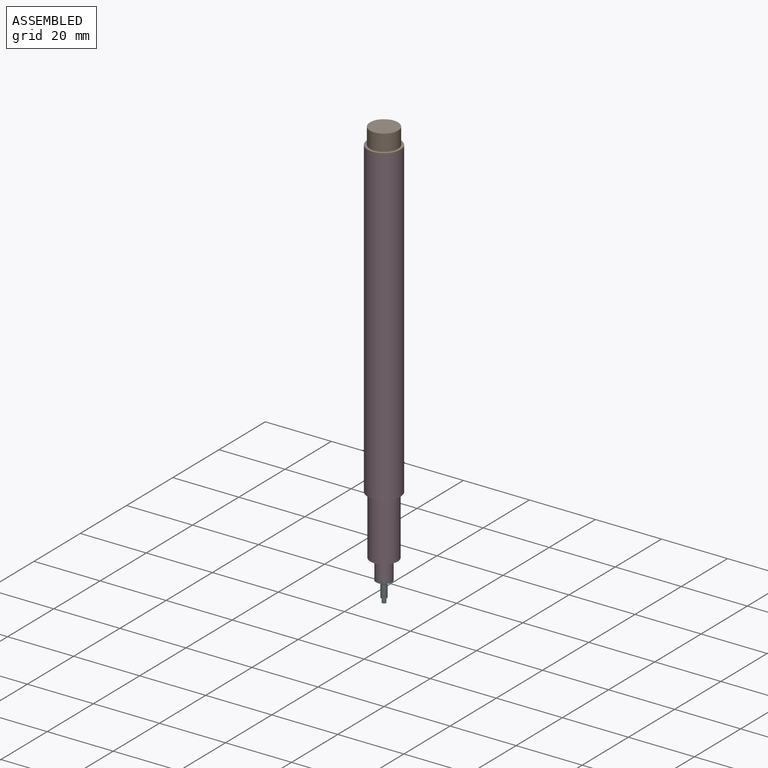
[diagram: assembled view]
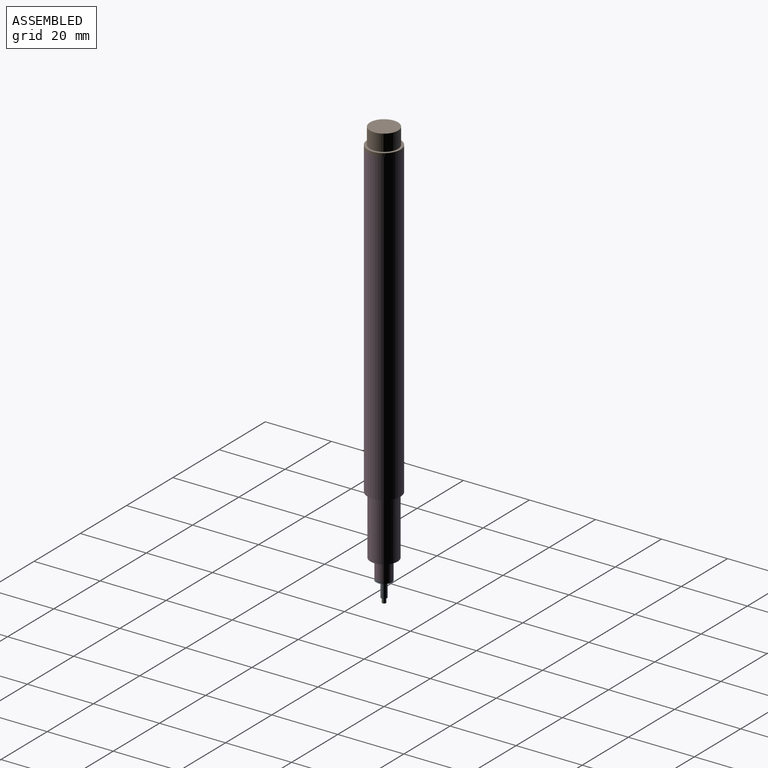
[diagram: assembled view, second angle]
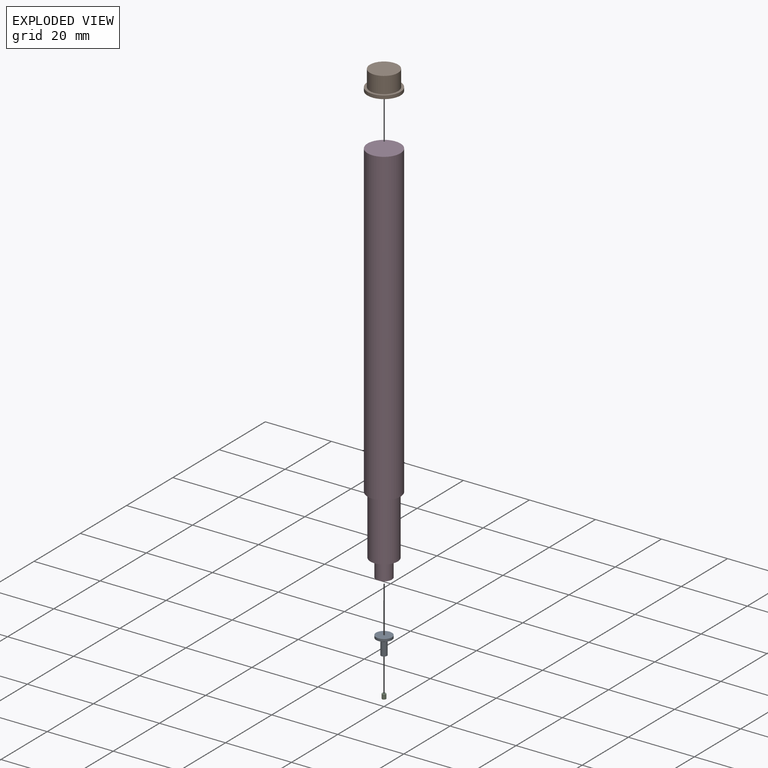
[diagram: exploded view]
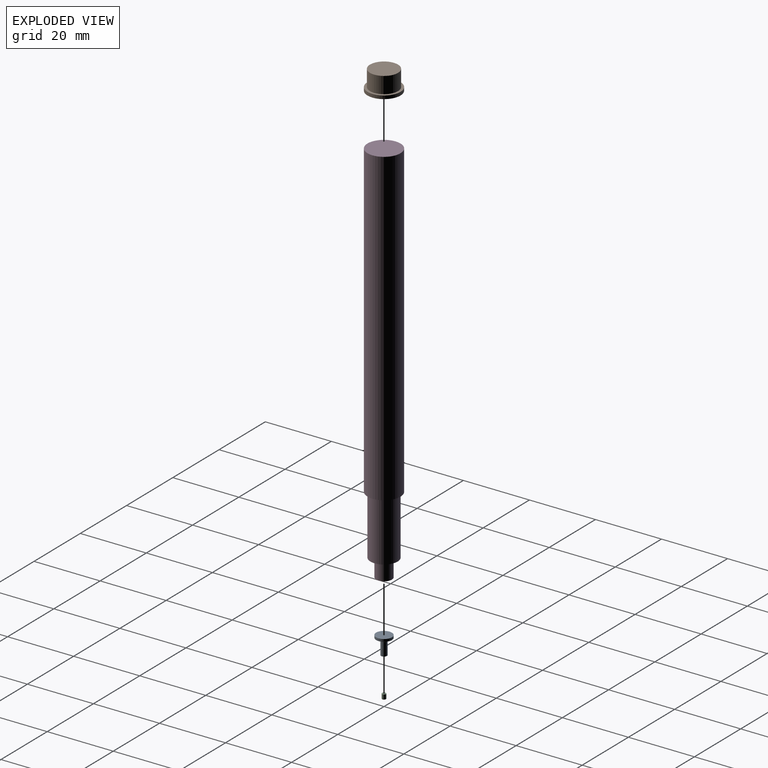
[diagram: exploded view, second angle]
ASSEMBLY  parts=4 mates=3
PART A: 5 faces, bbox 4.8x4.8x5.5 mm
  f0: plane 4.8x4.8mm, normal (0,0,1), area 18.1mm2, adj f4
  f1: plane 1.8x1.8mm, normal (0,0,-1), area 2.5mm2, adj f2
  f2: cylinder r=0.9mm len=4mm, axis (0,0,1), area 22.6mm2, adj f1,f3
  f3: cone r=2.4mm half-angle=63.4deg, axis (0,0,1), area 17.4mm2, adj f2,f4
  f4: cylinder r=2.4mm len=4.8mm, axis (0,0,1), area 11.3mm2, adj f0,f3
PART B: 5 faces, bbox 10x10x6 mm
  f0: cylinder r=5mm len=10mm, axis (0,0,-1), area 31.4mm2, adj f1,f2
  f1: plane 10x10mm, normal (0,0,1), area 21.8mm2, adj f0,f3
  f2: plane 10x10mm, normal (0,0,-1), area 78.5mm2, adj f0
  f3: cylinder r=4.25mm len=8.5mm, axis (0,0,-1), area 133.5mm2, adj f1,f4
  f4: plane 8.5x8.5mm, normal (0,0,1), area 56.7mm2, adj f3
PART C: 3 faces, bbox 1.2x1.2x1.6 mm
  f0: cone r=0.6mm half-angle=72.6deg, axis (0,0,1), area 1.2mm2, adj f1
  f1: cylinder r=0.6mm len=1.41mm, axis (0,0,-1), area 5.3mm2, adj f0,f2
  f2: plane 1.2x1.2mm, normal (0,0,1), area 1.1mm2, adj f1
PART D: 7 faces, bbox 10x10x117.4 mm
  f0: cylinder r=5mm len=94mm, axis (0,0,-1), area 2953.1mm2, adj f1,f2
  f1: plane 10x10mm, normal (0,0,1), area 78.5mm2, adj f0
  f2: plane 10x10mm, normal (0,0,-1), area 25.1mm2, adj f0,f3
  f3: cylinder r=4.12mm len=18mm, axis (0,0,1), area 466.5mm2, adj f2,f4
  f4: plane 8.25x8.25mm, normal (0,0,-1), area 35.4mm2, adj f3,f5
  f5: cylinder r=2.4mm len=5.4mm, axis (0,0,1), area 81.4mm2, adj f4,f6
  f6: plane 4.8x4.8mm, normal (0,0,-1), area 18.1mm2, adj f5
PLACE A at identity
PLACE B at identity
PLACE C at identity
PLACE D at identity
MATE fastened D.f0 <-> A.f2  axis (0,0,1) through (0,0,-23.4)mm
MATE fastened C.f1 <-> A.f3  axis (0,0,-1) through (0,0,-28.9)mm
MATE fastened D.f0 <-> B.f0  axis (0,0,-1) through (0,0,94)mm
